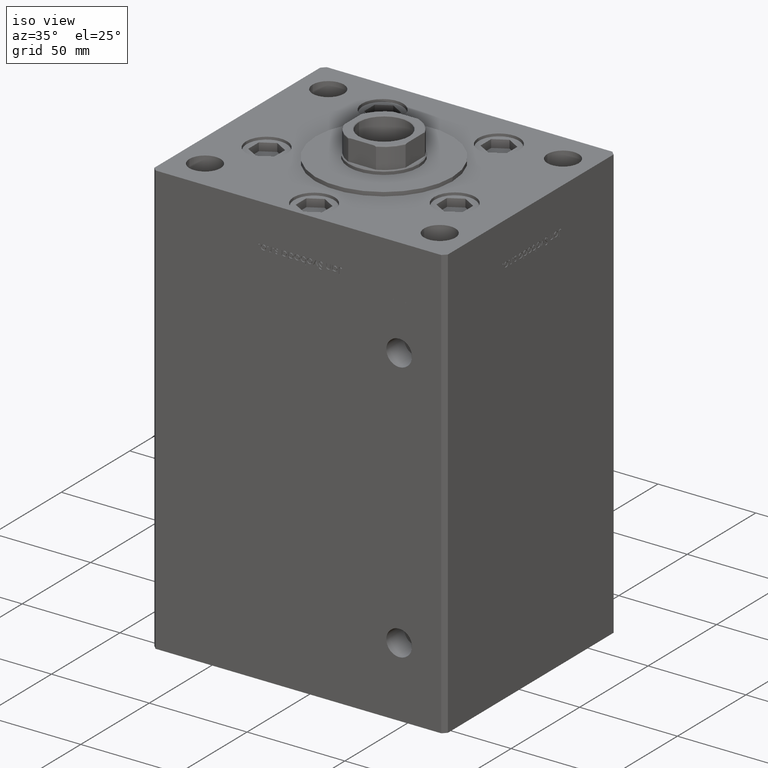
[diagram: clean part render]
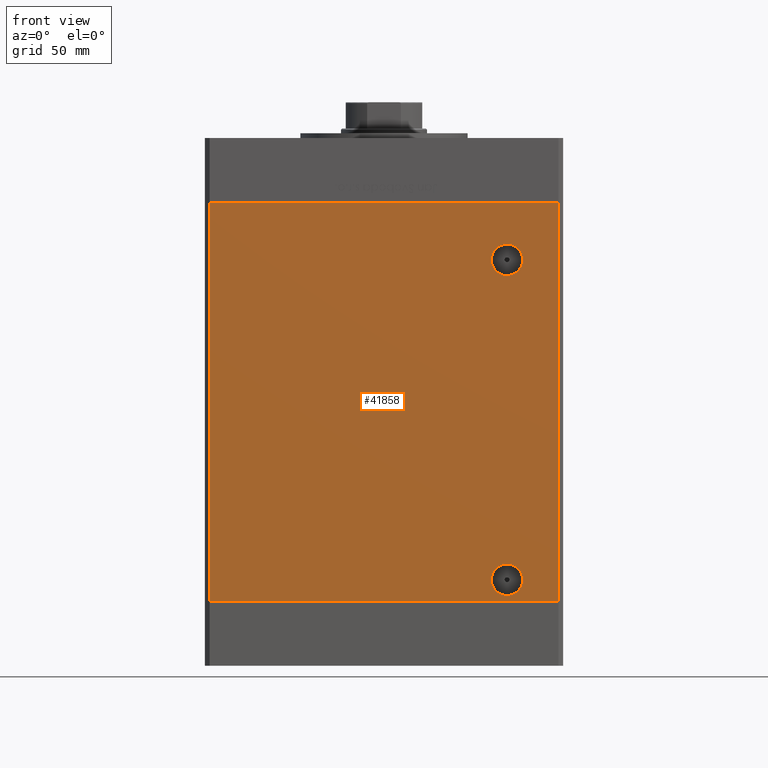
[diagram: tour spotlight — one face highlighted and labeled with its STEP entity id]
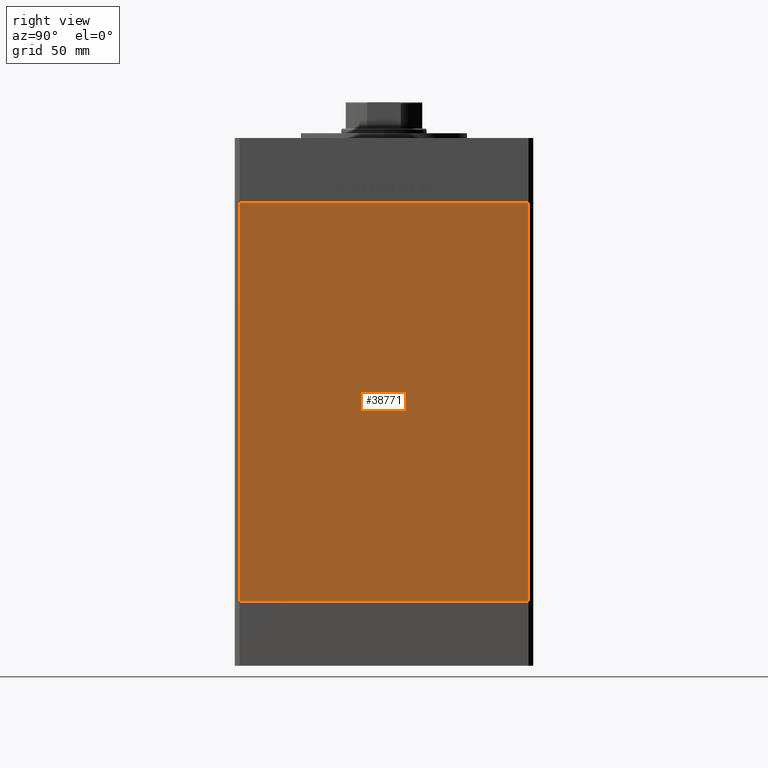
[diagram: tour spotlight — one face highlighted and labeled with its STEP entity id]
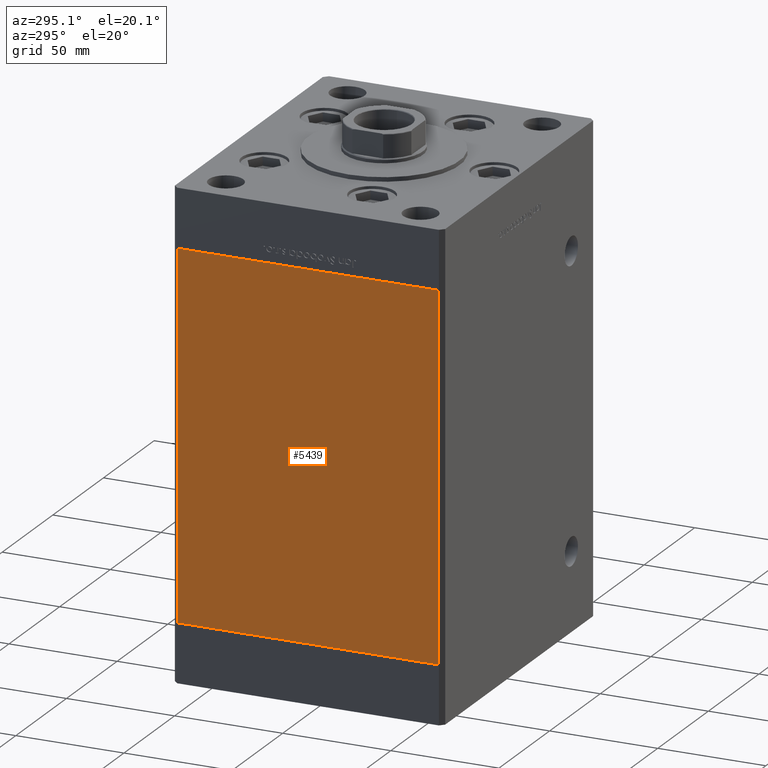
[diagram: tour spotlight — one face highlighted and labeled with its STEP entity id]
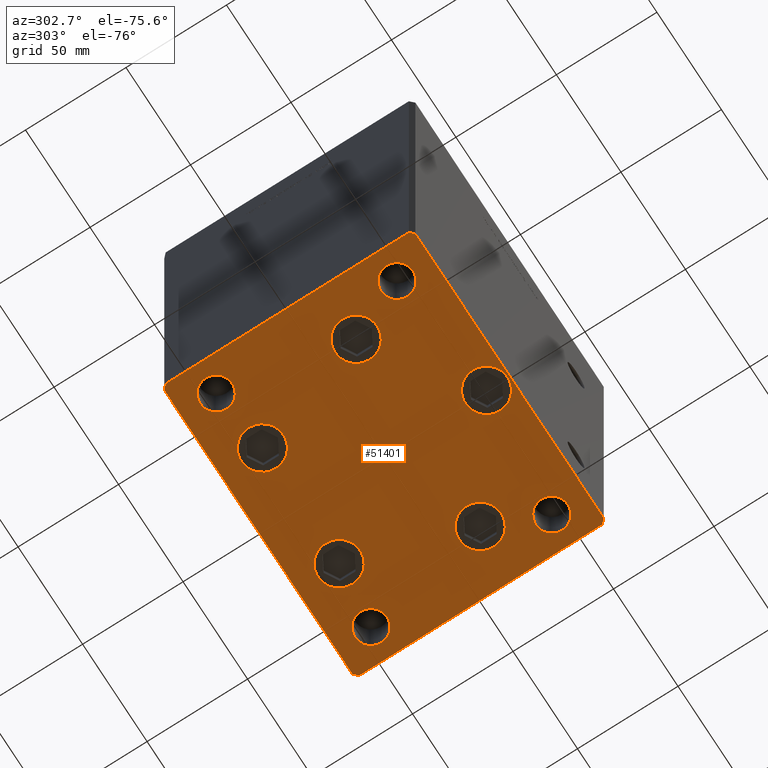
[diagram: tour spotlight — one face highlighted and labeled with its STEP entity id]
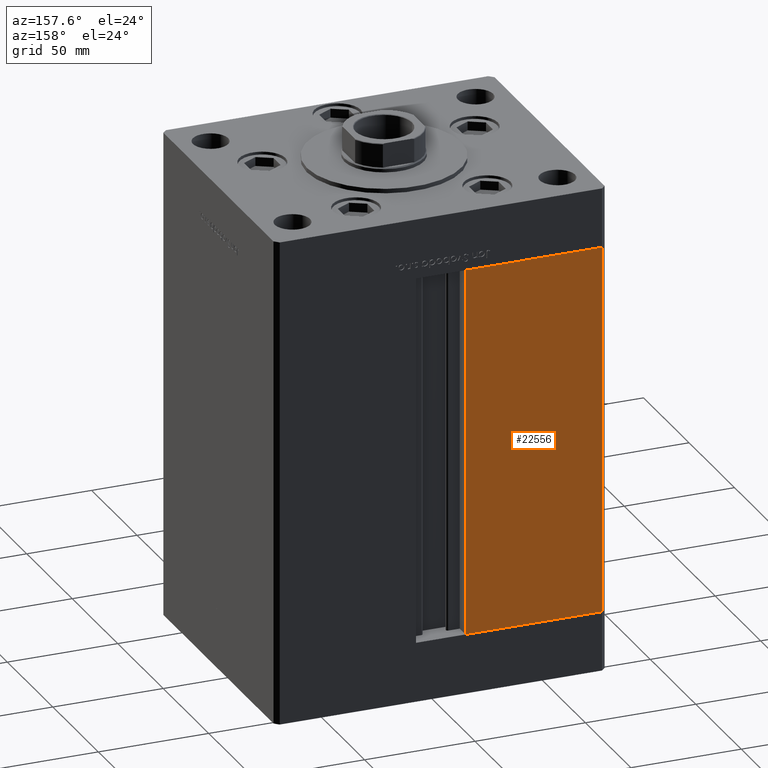
[diagram: tour spotlight — one face highlighted and labeled with its STEP entity id]
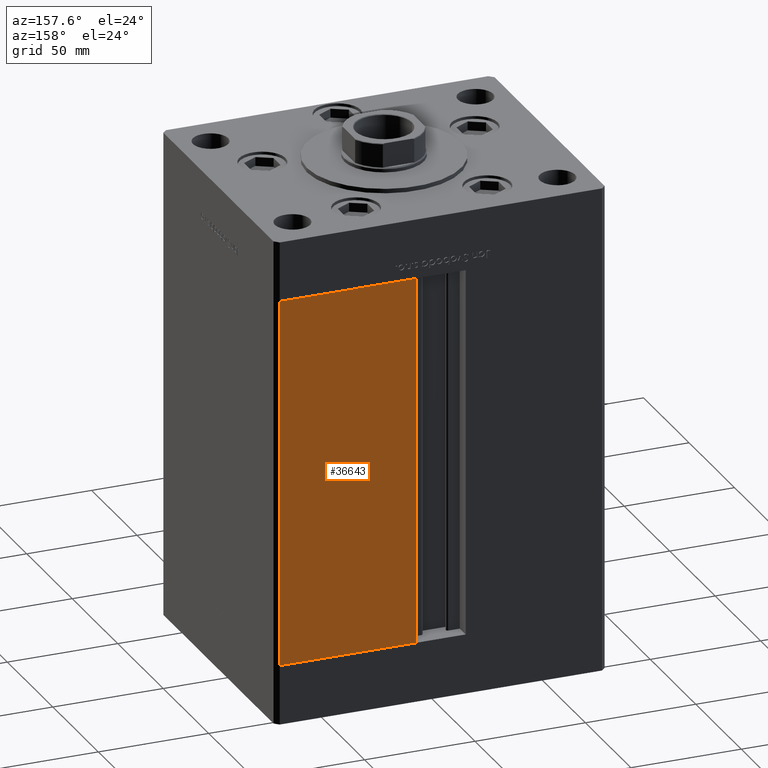
[diagram: tour spotlight — one face highlighted and labeled with its STEP entity id]
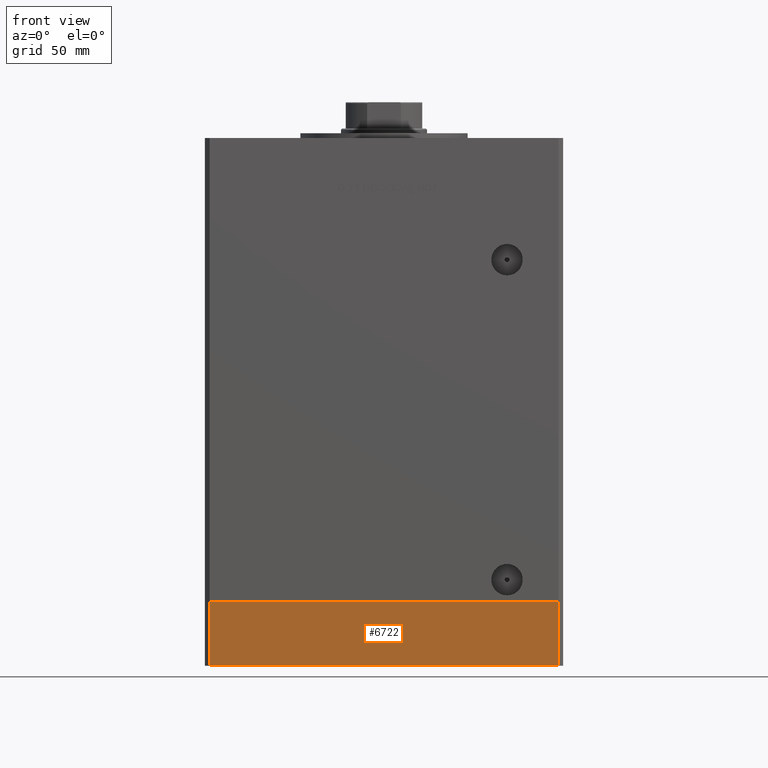
[diagram: tour spotlight — one face highlighted and labeled with its STEP entity id]
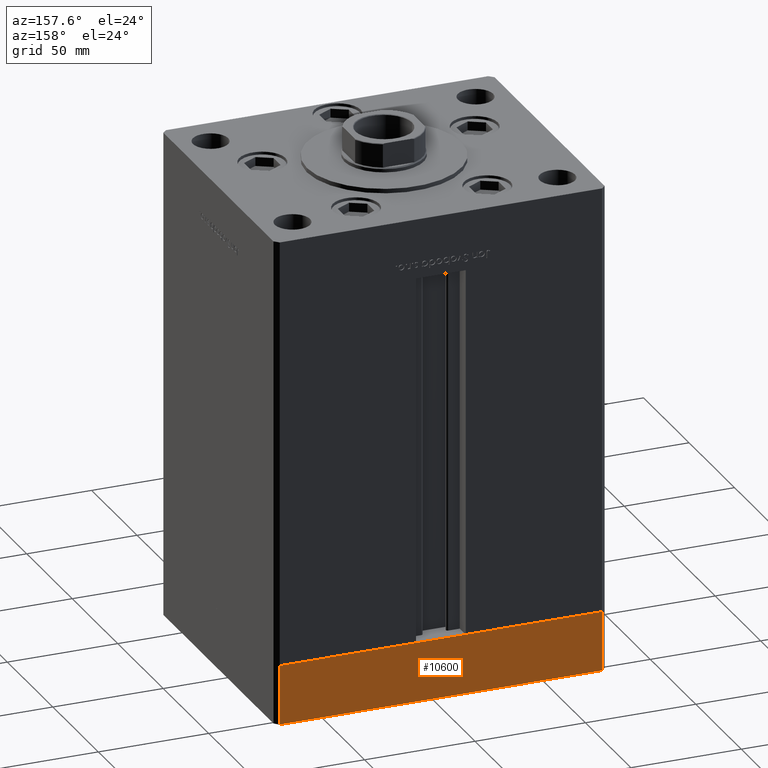
[diagram: tour spotlight — one face highlighted and labeled with its STEP entity id]
A machine part: a face-by-face anatomy tour. The part has 1185 B-rep faces; the first image is the clean iso view, then the 8 largest visible faces are spotlighted one at a time (largest first), each with its STEP entity span.

Face 1 — front view, entity #41858. In plain terms, the highlighted planar face has unit normal (0, 1, 0).
Definition (entity closure, byte-faithful):
#1390 = CARTESIAN_POINT ( 'NONE',  ( 51.49999999999998579, -62.50000000000000000, 15.58000000000000185 ) ) ;
#3079 = DIRECTION ( 'NONE',  ( -0.000000000000000000, -0.000000000000000000, -1.000000000000000000 ) ) ;
#3198 = DIRECTION ( 'NONE',  ( 0.000000000000000000, -1.000000000000000000, 0.000000000000000000 ) ) ;
#3371 = CARTESIAN_POINT ( 'NONE',  ( 51.49999999999997158, -62.50000000000000000, 143.0000000000000284 ) ) ;
#3547 = AXIS2_PLACEMENT_3D ( 'NONE', #23224, #3198, #51421 ) ;
#3856 = LINE ( 'NONE', #10974, #50994 ) ;
#3880 = LINE ( 'NONE', #19941, #30347 ) ;
#4501 = DIRECTION ( 'NONE',  ( 1.000000000000000000, 0.000000000000000000, 0.000000000000000000 ) ) ;
#5240 = CIRCLE ( 'NONE', #3547, 6.579999999999994742 ) ;
#5619 = VECTOR ( 'NONE', #28067, 1000.000000000000000 ) ;
#7736 = EDGE_CURVE ( 'NONE', #44266, #20592, #5240, .T. ) ;
#7951 = DIRECTION ( 'NONE',  ( 0.000000000000000000, -1.000000000000000000, 0.000000000000000000 ) ) ;
#10190 = AXIS2_PLACEMENT_3D ( 'NONE', #10814, #18976, #21901 ) ;
#10416 = CARTESIAN_POINT ( 'NONE',  ( 51.49999999999997158, -62.50000000000000000, 143.0000000000000284 ) ) ;
#10504 = ORIENTED_EDGE ( 'NONE', *, *, #21599, .T. ) ;
#10814 = CARTESIAN_POINT ( 'NONE',  ( -72.99999999999998579, -62.50000000000000000, 167.0000000000000000 ) ) ;
#10974 = CARTESIAN_POINT ( 'NONE',  ( -72.99999999999998579, -62.50000000000000000, 167.0000000000000000 ) ) ;
#11441 = DIRECTION ( 'NONE',  ( 0.000000000000000000, 0.000000000000000000, -1.000000000000000000 ) ) ;
#12527 = AXIS2_PLACEMENT_3D ( 'NONE', #28941, #7951, #20774 ) ;
#12776 = CARTESIAN_POINT ( 'NONE',  ( -72.99999999999998579, -62.50000000000000000, 0.000000000000000000 ) ) ;
#13682 = VERTEX_POINT ( 'NONE', #13985 ) ;
#13985 = CARTESIAN_POINT ( 'NONE',  ( 72.99999999999998579, -62.50000000000000000, 0.000000000000000000 ) ) ;
#14609 = CARTESIAN_POINT ( 'NONE',  ( 51.49999999999998579, -62.50000000000000000, 2.420000000000011475 ) ) ;
#15684 = LINE ( 'NONE', #12776, #5619 ) ;
#18151 = CARTESIAN_POINT ( 'NONE',  ( 51.49999999999997158, -62.50000000000000000, 136.4200000000000159 ) ) ;
#18862 = ORIENTED_EDGE ( 'NONE', *, *, #24217, .T. ) ;
#18976 = DIRECTION ( 'NONE',  ( 0.000000000000000000, 1.000000000000000000, 0.000000000000000000 ) ) ;
#19360 = CIRCLE ( 'NONE', #45426, 6.580000000000002736 ) ;
#19941 = CARTESIAN_POINT ( 'NONE',  ( 72.99999999999998579, -62.50000000000000000, 167.0000000000000000 ) ) ;
#20080 = ORIENTED_EDGE ( 'NONE', *, *, #40975, .F. ) ;
#20592 = VERTEX_POINT ( 'NONE', #14609 ) ;
#20774 = DIRECTION ( 'NONE',  ( 0.000000000000000000, 0.000000000000000000, -1.000000000000000000 ) ) ;
#21082 = LINE ( 'NONE', #33212, #23053 ) ;
#21599 = EDGE_CURVE ( 'NONE', #47385, #29950, #3856, .T. ) ;
#21733 = EDGE_LOOP ( 'NONE', ( #18862, #20080, #36057, #10504 ) ) ;
#21901 = DIRECTION ( 'NONE',  ( 0.000000000000000000, -0.000000000000000000, 1.000000000000000000 ) ) ;
#23053 = VECTOR ( 'NONE', #4501, 1000.000000000000000 ) ;
#23224 = CARTESIAN_POINT ( 'NONE',  ( 51.49999999999998579, -62.50000000000000000, 9.000000000000007105 ) ) ;
#24217 = EDGE_CURVE ( 'NONE', #29950, #13682, #15684, .T. ) ;
#26118 = FACE_BOUND ( 'NONE', #31734, .T. ) ;
#26842 = VERTEX_POINT ( 'NONE', #18151 ) ;
#27098 = DIRECTION ( 'NONE',  ( 0.000000000000000000, 0.000000000000000000, -1.000000000000000000 ) ) ;
#27561 = ORIENTED_EDGE ( 'NONE', *, *, #30867, .F. ) ;
#28067 = DIRECTION ( 'NONE',  ( 1.000000000000000000, 0.000000000000000000, 0.000000000000000000 ) ) ;
#28941 = CARTESIAN_POINT ( 'NONE',  ( 51.49999999999998579, -62.50000000000000000, 9.000000000000007105 ) ) ;
#29950 = VERTEX_POINT ( 'NONE', #30973 ) ;
#30317 = PLANE ( 'NONE',  #10190 ) ;
#30347 = VECTOR ( 'NONE', #52089, 1000.000000000000000 ) ;
#30837 = FACE_BOUND ( 'NONE', #39435, .T. ) ;
#30867 = EDGE_CURVE ( 'NONE', #20592, #44266, #32714, .T. ) ;
#30950 = DIRECTION ( 'NONE',  ( -0.000000000000000000, 1.000000000000000000, -0.000000000000000000 ) ) ;
#30973 = CARTESIAN_POINT ( 'NONE',  ( -72.99999999999998579, -62.50000000000000000, 0.000000000000000000 ) ) ;
#31306 = DIRECTION ( 'NONE',  ( -0.000000000000000000, 1.000000000000000000, -0.000000000000000000 ) ) ;
#31734 = EDGE_LOOP ( 'NONE', ( #27561, #32709 ) ) ;
#32519 = ORIENTED_EDGE ( 'NONE', *, *, #43236, .T. ) ;
#32709 = ORIENTED_EDGE ( 'NONE', *, *, #7736, .F. ) ;
#32714 = CIRCLE ( 'NONE', #12527, 6.579999999999994742 ) ;
#32728 = CARTESIAN_POINT ( 'NONE',  ( -72.99999999999998579, -62.50000000000000000, 167.0000000000000000 ) ) ;
#33212 = CARTESIAN_POINT ( 'NONE',  ( -72.99999999999998579, -62.50000000000000000, 167.0000000000000000 ) ) ;
#33966 = CARTESIAN_POINT ( 'NONE',  ( 72.99999999999998579, -62.50000000000000000, 167.0000000000000000 ) ) ;
#34437 = EDGE_CURVE ( 'NONE', #26842, #47719, #19360, .T. ) ;
#36057 = ORIENTED_EDGE ( 'NONE', *, *, #50777, .F. ) ;
#37132 = CIRCLE ( 'NONE', #48056, 6.580000000000002736 ) ;
#39435 = EDGE_LOOP ( 'NONE', ( #48489, #32519 ) ) ;
#40975 = EDGE_CURVE ( 'NONE', #43054, #13682, #3880, .T. ) ;
#41858 = ADVANCED_FACE ( 'NONE', ( #26118, #42160, #30837 ), #30317, .F. ) ;
#42160 = FACE_OUTER_BOUND ( 'NONE', #21733, .T. ) ;
#43054 = VERTEX_POINT ( 'NONE', #33966 ) ;
#43236 = EDGE_CURVE ( 'NONE', #47719, #26842, #37132, .T. ) ;
#44266 = VERTEX_POINT ( 'NONE', #1390 ) ;
#44775 = CARTESIAN_POINT ( 'NONE',  ( 51.49999999999997158, -62.50000000000000000, 149.5800000000000125 ) ) ;
#45426 = AXIS2_PLACEMENT_3D ( 'NONE', #10416, #30950, #11441 ) ;
#47385 = VERTEX_POINT ( 'NONE', #32728 ) ;
#47719 = VERTEX_POINT ( 'NONE', #44775 ) ;
#48056 = AXIS2_PLACEMENT_3D ( 'NONE', #3371, #31306, #27098 ) ;
#48489 = ORIENTED_EDGE ( 'NONE', *, *, #34437, .T. ) ;
#50777 = EDGE_CURVE ( 'NONE', #47385, #43054, #21082, .T. ) ;
#50994 = VECTOR ( 'NONE', #3079, 1000.000000000000000 ) ;
#51421 = DIRECTION ( 'NONE',  ( 0.000000000000000000, 0.000000000000000000, -1.000000000000000000 ) ) ;
#52089 = DIRECTION ( 'NONE',  ( -0.000000000000000000, -0.000000000000000000, -1.000000000000000000 ) ) ;

Face 2 — right view, entity #38771. In plain terms, the highlighted planar face has unit normal (1, -0, 0).
Definition (entity closure, byte-faithful):
#1369 = VECTOR ( 'NONE', #24007, 1000.000000000000000 ) ;
#1992 = LINE ( 'NONE', #37013, #34610 ) ;
#2867 = EDGE_LOOP ( 'NONE', ( #13543, #30529, #13601, #9141 ) ) ;
#3125 = VERTEX_POINT ( 'NONE', #51310 ) ;
#3838 = EDGE_CURVE ( 'NONE', #5170, #9280, #1992, .T. ) ;
#5170 = VERTEX_POINT ( 'NONE', #36636 ) ;
#5316 = FACE_OUTER_BOUND ( 'NONE', #2867, .T. ) ;
#6605 = DIRECTION ( 'NONE',  ( -2.293849224432141861E-16, -1.000000000000000000, 0.000000000000000000 ) ) ;
#7523 = VECTOR ( 'NONE', #6605, 1000.000000000000000 ) ;
#7938 = LINE ( 'NONE', #30678, #1369 ) ;
#9141 = ORIENTED_EDGE ( 'NONE', *, *, #3838, .T. ) ;
#9280 = VERTEX_POINT ( 'NONE', #9558 ) ;
#9529 = DIRECTION ( 'NONE',  ( 1.000000000000000000, -2.293849224432142354E-16, 0.000000000000000000 ) ) ;
#9558 = CARTESIAN_POINT ( 'NONE',  ( 74.99999999999998579, -60.50000000000000000, 0.000000000000000000 ) ) ;
#13543 = ORIENTED_EDGE ( 'NONE', *, *, #31825, .F. ) ;
#13601 = ORIENTED_EDGE ( 'NONE', *, *, #40873, .T. ) ;
#15469 = DIRECTION ( 'NONE',  ( -2.293849224432141861E-16, -1.000000000000000000, 0.000000000000000000 ) ) ;
#21897 = EDGE_CURVE ( 'NONE', #3125, #35310, #7938, .T. ) ;
#24007 = DIRECTION ( 'NONE',  ( -0.000000000000000000, -0.000000000000000000, -1.000000000000000000 ) ) ;
#25603 = DIRECTION ( 'NONE',  ( 2.293849224432142354E-16, 1.000000000000000000, 0.000000000000000000 ) ) ;
#27589 = CARTESIAN_POINT ( 'NONE',  ( 75.00000000000001421, 60.50000000000000000, 167.0000000000000000 ) ) ;
#28608 = AXIS2_PLACEMENT_3D ( 'NONE', #49589, #9529, #25603 ) ;
#30166 = DIRECTION ( 'NONE',  ( -0.000000000000000000, -0.000000000000000000, -1.000000000000000000 ) ) ;
#30529 = ORIENTED_EDGE ( 'NONE', *, *, #21897, .F. ) ;
#30678 = CARTESIAN_POINT ( 'NONE',  ( 75.00000000000001421, 60.50000000000000000, 167.0000000000000000 ) ) ;
#30836 = CARTESIAN_POINT ( 'NONE',  ( 75.00000000000001421, 60.50000000000000000, 0.000000000000000000 ) ) ;
#31825 = EDGE_CURVE ( 'NONE', #35310, #9280, #34273, .T. ) ;
#34273 = LINE ( 'NONE', #30836, #7523 ) ;
#34610 = VECTOR ( 'NONE', #30166, 1000.000000000000000 ) ;
#35310 = VERTEX_POINT ( 'NONE', #43373 ) ;
#36636 = CARTESIAN_POINT ( 'NONE',  ( 74.99999999999998579, -60.50000000000000000, 167.0000000000000000 ) ) ;
#37013 = CARTESIAN_POINT ( 'NONE',  ( 74.99999999999998579, -60.50000000000000000, 167.0000000000000000 ) ) ;
#37435 = PLANE ( 'NONE',  #28608 ) ;
#38771 = ADVANCED_FACE ( 'NONE', ( #5316 ), #37435, .T. ) ;
#40873 = EDGE_CURVE ( 'NONE', #3125, #5170, #46582, .T. ) ;
#43373 = CARTESIAN_POINT ( 'NONE',  ( 75.00000000000001421, 60.50000000000000000, 0.000000000000000000 ) ) ;
#46582 = LINE ( 'NONE', #27589, #50528 ) ;
#49589 = CARTESIAN_POINT ( 'NONE',  ( 75.00000000000001421, 60.50000000000000000, 167.0000000000000000 ) ) ;
#50528 = VECTOR ( 'NONE', #15469, 1000.000000000000000 ) ;
#51310 = CARTESIAN_POINT ( 'NONE',  ( 75.00000000000001421, 60.50000000000000000, 167.0000000000000000 ) ) ;

Face 3 — auxiliary view, entity #5439. In plain terms, the highlighted planar face has unit normal (1, 0, 0).
Definition (entity closure, byte-faithful):
#1039 = CARTESIAN_POINT ( 'NONE',  ( -74.99999999999998579, -60.50000000000000000, 0.000000000000000000 ) ) ;
#2711 = VERTEX_POINT ( 'NONE', #8506 ) ;
#3989 = VECTOR ( 'NONE', #28890, 1000.000000000000000 ) ;
#4068 = ORIENTED_EDGE ( 'NONE', *, *, #39587, .F. ) ;
#5439 = ADVANCED_FACE ( 'NONE', ( #33357 ), #10427, .F. ) ;
#5693 = DIRECTION ( 'NONE',  ( -2.293849224432142354E-16, 1.000000000000000000, 0.000000000000000000 ) ) ;
#7585 = VECTOR ( 'NONE', #41401, 1000.000000000000000 ) ;
#8254 = EDGE_CURVE ( 'NONE', #19365, #32156, #18880, .T. ) ;
#8506 = CARTESIAN_POINT ( 'NONE',  ( -75.00000000000001421, 60.50000000000000000, 0.000000000000000000 ) ) ;
#9288 = CARTESIAN_POINT ( 'NONE',  ( -75.00000000000001421, 60.50000000000000000, 167.0000000000000000 ) ) ;
#10427 = PLANE ( 'NONE',  #32951 ) ;
#12831 = LINE ( 'NONE', #29157, #3989 ) ;
#14373 = CARTESIAN_POINT ( 'NONE',  ( -75.00000000000001421, 60.50000000000000000, 167.0000000000000000 ) ) ;
#17082 = EDGE_LOOP ( 'NONE', ( #45278, #31805, #4068, #42647 ) ) ;
#17873 = CARTESIAN_POINT ( 'NONE',  ( -75.00000000000001421, 60.50000000000000000, 0.000000000000000000 ) ) ;
#18366 = CARTESIAN_POINT ( 'NONE',  ( -74.99999999999998579, -60.50000000000000000, 167.0000000000000000 ) ) ;
#18880 = LINE ( 'NONE', #18366, #46507 ) ;
#19365 = VERTEX_POINT ( 'NONE', #47570 ) ;
#22543 = DIRECTION ( 'NONE',  ( 1.000000000000000000, 2.293849224432142354E-16, -0.000000000000000000 ) ) ;
#25340 = LINE ( 'NONE', #30595, #7585 ) ;
#25396 = EDGE_CURVE ( 'NONE', #2711, #32156, #37862, .T. ) ;
#25856 = VECTOR ( 'NONE', #46056, 1000.000000000000000 ) ;
#27134 = EDGE_CURVE ( 'NONE', #35684, #2711, #12831, .T. ) ;
#28890 = DIRECTION ( 'NONE',  ( -0.000000000000000000, -0.000000000000000000, -1.000000000000000000 ) ) ;
#29157 = CARTESIAN_POINT ( 'NONE',  ( -75.00000000000001421, 60.50000000000000000, 167.0000000000000000 ) ) ;
#30595 = CARTESIAN_POINT ( 'NONE',  ( -75.00000000000001421, 60.50000000000000000, 167.0000000000000000 ) ) ;
#31805 = ORIENTED_EDGE ( 'NONE', *, *, #8254, .F. ) ;
#32156 = VERTEX_POINT ( 'NONE', #1039 ) ;
#32951 = AXIS2_PLACEMENT_3D ( 'NONE', #14373, #22543, #5693 ) ;
#33357 = FACE_OUTER_BOUND ( 'NONE', #17082, .T. ) ;
#34425 = DIRECTION ( 'NONE',  ( -0.000000000000000000, -0.000000000000000000, -1.000000000000000000 ) ) ;
#35684 = VERTEX_POINT ( 'NONE', #9288 ) ;
#37862 = LINE ( 'NONE', #17873, #25856 ) ;
#39587 = EDGE_CURVE ( 'NONE', #35684, #19365, #25340, .T. ) ;
#41401 = DIRECTION ( 'NONE',  ( 2.293849224432141861E-16, -1.000000000000000000, 0.000000000000000000 ) ) ;
#42647 = ORIENTED_EDGE ( 'NONE', *, *, #27134, .T. ) ;
#45278 = ORIENTED_EDGE ( 'NONE', *, *, #25396, .T. ) ;
#46056 = DIRECTION ( 'NONE',  ( 2.293849224432141861E-16, -1.000000000000000000, 0.000000000000000000 ) ) ;
#46507 = VECTOR ( 'NONE', #34425, 1000.000000000000000 ) ;
#47570 = CARTESIAN_POINT ( 'NONE',  ( -74.99999999999998579, -60.50000000000000000, 167.0000000000000000 ) ) ;

Face 4 — auxiliary view, entity #51401. In plain terms, the highlighted planar face has unit normal (0, 0, -1).
Definition (entity closure, byte-faithful):
#97 = CIRCLE ( 'NONE', #12741, 8.000000000000007105 ) ;
#140 = DIRECTION ( 'NONE',  ( 0.000000000000000000, -0.000000000000000000, -1.000000000000000000 ) ) ;
#418 = CARTESIAN_POINT ( 'NONE',  ( 29.73102073172059789, 41.43749999999999289, 0.000000000000000000 ) ) ;
#555 = DIRECTION ( 'NONE',  ( 0.000000000000000000, -0.000000000000000000, -1.000000000000000000 ) ) ;
#1106 = VERTEX_POINT ( 'NONE', #17211 ) ;
#1130 = EDGE_CURVE ( 'NONE', #27614, #18181, #49840, .T. ) ;
#1224 = EDGE_LOOP ( 'NONE', ( #5529, #47314 ) ) ;
#1282 = DIRECTION ( 'NONE',  ( 0.000000000000000000, -0.000000000000000000, -1.000000000000000000 ) ) ;
#1308 = CARTESIAN_POINT ( 'NONE',  ( 72.99999999999992895, 62.50000000000001421, 0.000000000000000000 ) ) ;
#1704 = CIRCLE ( 'NONE', #42069, 10.50000000000000000 ) ;
#1858 = VERTEX_POINT ( 'NONE', #14542 ) ;
#2034 = CARTESIAN_POINT ( 'NONE',  ( 68.00000000000000000, 44.99999999999999289, 0.000000000000000000 ) ) ;
#2252 = DIRECTION ( 'NONE',  ( 1.000000000000000000, 0.000000000000000000, 0.000000000000000000 ) ) ;
#2800 = EDGE_CURVE ( 'NONE', #1858, #35930, #14029, .T. ) ;
#3313 = AXIS2_PLACEMENT_3D ( 'NONE', #38667, #21839, #25803 ) ;
#3321 = DIRECTION ( 'NONE',  ( 1.000000000000000000, 0.000000000000000000, 0.000000000000000000 ) ) ;
#3638 = ORIENTED_EDGE ( 'NONE', *, *, #41437, .F. ) ;
#4365 = CARTESIAN_POINT ( 'NONE',  ( 73.00000000000001421, -62.50000000000001421, 0.000000000000000000 ) ) ;
#4375 = CARTESIAN_POINT ( 'NONE',  ( -48.08326112068522207, -17.00000000000000711, 0.000000000000000000 ) ) ;
#4376 = CARTESIAN_POINT ( 'NONE',  ( 6.245698675651500444E-15, -51.00000000000000000, 0.000000000000000000 ) ) ;
#4409 = CIRCLE ( 'NONE', #40575, 10.50000000000000178 ) ;
#4590 = CARTESIAN_POINT ( 'NONE',  ( -60.00000000000000000, 45.00000000000000000, 0.000000000000000000 ) ) ;
#4599 = VECTOR ( 'NONE', #47736, 1000.000000000000000 ) ;
#4830 = FACE_BOUND ( 'NONE', #45704, .T. ) ;
#4858 = AXIS2_PLACEMENT_3D ( 'NONE', #33415, #1282, #48705 ) ;
#5129 = EDGE_CURVE ( 'NONE', #17651, #1106, #5202, .T. ) ;
#5202 = CIRCLE ( 'NONE', #28732, 10.50000000000000178 ) ;
#5297 = DIRECTION ( 'NONE',  ( 1.000000000000000000, 0.000000000000000000, 0.000000000000000000 ) ) ;
#5313 = CARTESIAN_POINT ( 'NONE',  ( -40.23102073172060500, 41.43749999999998579, 0.000000000000000000 ) ) ;
#5529 = ORIENTED_EDGE ( 'NONE', *, *, #6266, .T. ) ;
#5704 = DIRECTION ( 'NONE',  ( 1.000000000000000000, 0.000000000000000000, 0.000000000000000000 ) ) ;
#6069 = EDGE_LOOP ( 'NONE', ( #15622, #35977 ) ) ;
#6266 = EDGE_CURVE ( 'NONE', #45393, #38489, #27915, .T. ) ;
#6377 = VERTEX_POINT ( 'NONE', #31814 ) ;
#6520 = AXIS2_PLACEMENT_3D ( 'NONE', #13202, #555, #5297 ) ;
#6685 = EDGE_LOOP ( 'NONE', ( #15570, #26052 ) ) ;
#7050 = CARTESIAN_POINT ( 'NONE',  ( -60.00000000000000000, 45.00000000000000000, 0.000000000000000000 ) ) ;
#7505 = CARTESIAN_POINT ( 'NONE',  ( -75.00000000000001421, -60.50000000000001421, 0.000000000000000000 ) ) ;
#7611 = VERTEX_POINT ( 'NONE', #24835 ) ;
#7982 = VERTEX_POINT ( 'NONE', #50591 ) ;
#8564 = VERTEX_POINT ( 'NONE', #12147 ) ;
#8632 = EDGE_CURVE ( 'NONE', #9757, #36293, #4409, .T. ) ;
#8715 = DIRECTION ( 'NONE',  ( 1.000000000000000000, 0.000000000000000000, 0.000000000000000000 ) ) ;
#9564 = FACE_BOUND ( 'NONE', #25282, .T. ) ;
#9588 = ORIENTED_EDGE ( 'NONE', *, *, #38302, .T. ) ;
#9754 = DIRECTION ( 'NONE',  ( -1.000000000000000000, -1.901066822988282689E-16, 0.000000000000000000 ) ) ;
#9757 = VERTEX_POINT ( 'NONE', #33866 ) ;
#9822 = FACE_BOUND ( 'NONE', #24406, .T. ) ;
#10561 = EDGE_CURVE ( 'NONE', #38489, #45393, #26356, .T. ) ;
#10667 = CARTESIAN_POINT ( 'NONE',  ( 10.50000000000000711, -51.00000000000000000, 0.000000000000000000 ) ) ;
#10932 = ORIENTED_EDGE ( 'NONE', *, *, #51237, .T. ) ;
#11254 = AXIS2_PLACEMENT_3D ( 'NONE', #25847, #45860, #37417 ) ;
#11796 = ORIENTED_EDGE ( 'NONE', *, *, #15630, .F. ) ;
#12147 = CARTESIAN_POINT ( 'NONE',  ( 68.00000000000000000, -44.99999999999999289, 0.000000000000000000 ) ) ;
#12229 = CIRCLE ( 'NONE', #37447, 8.000000000000007105 ) ;
#12404 = CARTESIAN_POINT ( 'NONE',  ( -29.73102073172060500, 41.43749999999998579, 0.000000000000000000 ) ) ;
#12732 = FACE_BOUND ( 'NONE', #1224, .T. ) ;
#12741 = AXIS2_PLACEMENT_3D ( 'NONE', #18670, #46605, #50060 ) ;
#12747 = EDGE_CURVE ( 'NONE', #48088, #23034, #25591, .T. ) ;
#13202 = CARTESIAN_POINT ( 'NONE',  ( -59.99999999999999289, -45.00000000000000000, 0.000000000000000000 ) ) ;
#13511 = DIRECTION ( 'NONE',  ( 0.000000000000000000, -0.000000000000000000, -1.000000000000000000 ) ) ;
#14029 = LINE ( 'NONE', #42197, #35501 ) ;
#14442 = DIRECTION ( 'NONE',  ( 1.000000000000000000, 0.000000000000000000, 0.000000000000000000 ) ) ;
#14542 = CARTESIAN_POINT ( 'NONE',  ( -73.00000000000001421, 62.49999999999998579, 0.000000000000000000 ) ) ;
#14703 = DIRECTION ( 'NONE',  ( -0.000000000000000000, 0.000000000000000000, 1.000000000000000000 ) ) ;
#14879 = LINE ( 'NONE', #31203, #36493 ) ;
#14883 = EDGE_CURVE ( 'NONE', #21783, #49251, #15590, .T. ) ;
#14970 = ORIENTED_EDGE ( 'NONE', *, *, #22069, .T. ) ;
#15570 = ORIENTED_EDGE ( 'NONE', *, *, #36566, .T. ) ;
#15590 = LINE ( 'NONE', #38780, #4599 ) ;
#15622 = ORIENTED_EDGE ( 'NONE', *, *, #1130, .T. ) ;
#15630 = EDGE_CURVE ( 'NONE', #36602, #39734, #32384, .T. ) ;
#15945 = CARTESIAN_POINT ( 'NONE',  ( 48.08326112068522207, -16.99999999999999645, 0.000000000000000000 ) ) ;
#15967 = DIRECTION ( 'NONE',  ( 0.000000000000000000, -0.000000000000000000, -1.000000000000000000 ) ) ;
#16101 = CARTESIAN_POINT ( 'NONE',  ( -48.08326112068522207, -17.00000000000000711, 0.000000000000000000 ) ) ;
#16372 = DIRECTION ( 'NONE',  ( 1.000000000000000000, 0.000000000000000000, 0.000000000000000000 ) ) ;
#16531 = ORIENTED_EDGE ( 'NONE', *, *, #27068, .T. ) ;
#16715 = EDGE_CURVE ( 'NONE', #8564, #28771, #12229, .T. ) ;
#16943 = CARTESIAN_POINT ( 'NONE',  ( 0.000000000000000000, 0.000000000000000000, 0.000000000000000000 ) ) ;
#17208 = DIRECTION ( 'NONE',  ( -0.7071067811865451302, -0.7071067811865500152, 0.000000000000000000 ) ) ;
#17211 = CARTESIAN_POINT ( 'NONE',  ( -37.58326112068522207, -17.00000000000000711, 0.000000000000000000 ) ) ;
#17651 = VERTEX_POINT ( 'NONE', #28295 ) ;
#17759 = CIRCLE ( 'NONE', #28680, 8.000000000000000000 ) ;
#17867 = AXIS2_PLACEMENT_3D ( 'NONE', #49968, #29916, #45990 ) ;
#18181 = VERTEX_POINT ( 'NONE', #44225 ) ;
#18183 = AXIS2_PLACEMENT_3D ( 'NONE', #4375, #49176, #20182 ) ;
#18184 = CARTESIAN_POINT ( 'NONE',  ( 72.99999999999992895, 62.50000000000001421, 0.000000000000000000 ) ) ;
#18664 = CARTESIAN_POINT ( 'NONE',  ( -52.00000000000000000, 45.00000000000000000, 0.000000000000000000 ) ) ;
#18670 = CARTESIAN_POINT ( 'NONE',  ( 60.00000000000000000, -44.99999999999999289, 0.000000000000000000 ) ) ;
#19163 = CARTESIAN_POINT ( 'NONE',  ( -75.00000000000001421, 60.49999999999997158, 0.000000000000000000 ) ) ;
#19927 = DIRECTION ( 'NONE',  ( 0.000000000000000000, -0.000000000000000000, -1.000000000000000000 ) ) ;
#20113 = VECTOR ( 'NONE', #50964, 1000.000000000000114 ) ;
#20114 = EDGE_CURVE ( 'NONE', #22104, #21783, #34545, .T. ) ;
#20182 = DIRECTION ( 'NONE',  ( 1.000000000000000000, 0.000000000000000000, 0.000000000000000000 ) ) ;
#20653 = DIRECTION ( 'NONE',  ( -0.000000000000000000, 0.000000000000000000, 1.000000000000000000 ) ) ;
#20679 = CARTESIAN_POINT ( 'NONE',  ( 75.00000000000001421, -60.50000000000000711, 0.000000000000000000 ) ) ;
#20887 = DIRECTION ( 'NONE',  ( 1.000000000000000000, 0.000000000000000000, 0.000000000000000000 ) ) ;
#20888 = FACE_BOUND ( 'NONE', #6685, .T. ) ;
#21448 = CARTESIAN_POINT ( 'NONE',  ( 40.23102073172059789, 41.43749999999999289, 0.000000000000000000 ) ) ;
#21457 = ORIENTED_EDGE ( 'NONE', *, *, #2800, .T. ) ;
#21684 = FACE_BOUND ( 'NONE', #6069, .T. ) ;
#21783 = VERTEX_POINT ( 'NONE', #4365 ) ;
#21839 = DIRECTION ( 'NONE',  ( 0.000000000000000000, -0.000000000000000000, -1.000000000000000000 ) ) ;
#21853 = VECTOR ( 'NONE', #28055, 1000.000000000000114 ) ;
#22069 = EDGE_CURVE ( 'NONE', #23780, #1858, #50335, .T. ) ;
#22104 = VERTEX_POINT ( 'NONE', #50600 ) ;
#22279 = DIRECTION ( 'NONE',  ( 0.000000000000000000, -0.000000000000000000, -1.000000000000000000 ) ) ;
#22490 = EDGE_CURVE ( 'NONE', #1106, #17651, #40040, .T. ) ;
#23034 = VERTEX_POINT ( 'NONE', #35040 ) ;
#23437 = CARTESIAN_POINT ( 'NONE',  ( -51.99999999999999289, -45.00000000000000000, 0.000000000000000000 ) ) ;
#23572 = DIRECTION ( 'NONE',  ( 1.000000000000000000, 0.000000000000000000, 0.000000000000000000 ) ) ;
#23780 = VERTEX_POINT ( 'NONE', #1308 ) ;
#24406 = EDGE_LOOP ( 'NONE', ( #46530, #34364 ) ) ;
#24521 = CARTESIAN_POINT ( 'NONE',  ( 29.73102073172059789, 41.43749999999999289, 0.000000000000000000 ) ) ;
#24572 = VERTEX_POINT ( 'NONE', #42177 ) ;
#24835 = CARTESIAN_POINT ( 'NONE',  ( -75.00000000000001421, -60.50000000000001421, 0.000000000000000000 ) ) ;
#24943 = DIRECTION ( 'NONE',  ( 0.000000000000000000, -1.000000000000000000, 0.000000000000000000 ) ) ;
#25214 = ORIENTED_EDGE ( 'NONE', *, *, #45985, .T. ) ;
#25282 = EDGE_LOOP ( 'NONE', ( #26805, #26266 ) ) ;
#25591 = CIRCLE ( 'NONE', #11254, 8.000000000000007105 ) ;
#25803 = DIRECTION ( 'NONE',  ( 1.000000000000000000, 0.000000000000000000, 0.000000000000000000 ) ) ;
#25847 = CARTESIAN_POINT ( 'NONE',  ( 60.00000000000000000, 44.99999999999999289, 0.000000000000000000 ) ) ;
#25936 = ORIENTED_EDGE ( 'NONE', *, *, #37818, .T. ) ;
#25992 = CARTESIAN_POINT ( 'NONE',  ( 60.00000000000000000, -44.99999999999999289, 0.000000000000000000 ) ) ;
#26052 = ORIENTED_EDGE ( 'NONE', *, *, #8632, .T. ) ;
#26266 = ORIENTED_EDGE ( 'NONE', *, *, #22490, .T. ) ;
#26356 = CIRCLE ( 'NONE', #36399, 10.50000000000000178 ) ;
#26574 = EDGE_LOOP ( 'NONE', ( #42368, #25936 ) ) ;
#26805 = ORIENTED_EDGE ( 'NONE', *, *, #5129, .T. ) ;
#27068 = EDGE_CURVE ( 'NONE', #35930, #7611, #44949, .T. ) ;
#27368 = EDGE_CURVE ( 'NONE', #18181, #27614, #32608, .T. ) ;
#27614 = VERTEX_POINT ( 'NONE', #23437 ) ;
#27721 = EDGE_CURVE ( 'NONE', #24572, #6377, #30955, .T. ) ;
#27915 = CIRCLE ( 'NONE', #48949, 10.50000000000000178 ) ;
#28055 = DIRECTION ( 'NONE',  ( 0.7071067811865451302, -0.7071067811865500152, 0.000000000000000000 ) ) ;
#28295 = CARTESIAN_POINT ( 'NONE',  ( -58.58326112068522207, -17.00000000000000711, 0.000000000000000000 ) ) ;
#28465 = DIRECTION ( 'NONE',  ( 0.000000000000000000, -0.000000000000000000, -1.000000000000000000 ) ) ;
#28680 = AXIS2_PLACEMENT_3D ( 'NONE', #4590, #20653, #23572 ) ;
#28732 = AXIS2_PLACEMENT_3D ( 'NONE', #16101, #32184, #16372 ) ;
#28771 = VERTEX_POINT ( 'NONE', #30511 ) ;
#29321 = FACE_BOUND ( 'NONE', #26574, .T. ) ;
#29478 = EDGE_LOOP ( 'NONE', ( #35624, #25214 ) ) ;
#29543 = VERTEX_POINT ( 'NONE', #37170 ) ;
#29916 = DIRECTION ( 'NONE',  ( -0.000000000000000000, 0.000000000000000000, 1.000000000000000000 ) ) ;
#29947 = VECTOR ( 'NONE', #9754, 1000.000000000000000 ) ;
#30439 = AXIS2_PLACEMENT_3D ( 'NONE', #40902, #13511, #20887 ) ;
#30511 = CARTESIAN_POINT ( 'NONE',  ( 51.99999999999999289, -44.99999999999999289, 0.000000000000000000 ) ) ;
#30598 = DIRECTION ( 'NONE',  ( 1.000000000000000000, 9.505334114941407284E-17, 0.000000000000000000 ) ) ;
#30654 = CARTESIAN_POINT ( 'NONE',  ( 74.99999999999992895, 60.50000000000002842, 0.000000000000000000 ) ) ;
#30955 = CIRCLE ( 'NONE', #4858, 10.50000000000000178 ) ;
#31203 = CARTESIAN_POINT ( 'NONE',  ( 75.00000000000001421, -60.50000000000000711, 0.000000000000000000 ) ) ;
#31814 = CARTESIAN_POINT ( 'NONE',  ( 58.58326112068522207, -16.99999999999999645, 0.000000000000000000 ) ) ;
#31997 = LINE ( 'NONE', #7505, #21853 ) ;
#32149 = CIRCLE ( 'NONE', #17867, 8.000000000000007105 ) ;
#32184 = DIRECTION ( 'NONE',  ( 0.000000000000000000, -0.000000000000000000, -1.000000000000000000 ) ) ;
#32316 = EDGE_LOOP ( 'NONE', ( #43403, #35248 ) ) ;
#32384 = CIRCLE ( 'NONE', #36581, 8.000000000000000000 ) ;
#32529 = ORIENTED_EDGE ( 'NONE', *, *, #20114, .T. ) ;
#32534 = EDGE_CURVE ( 'NONE', #29543, #23780, #35364, .T. ) ;
#32608 = CIRCLE ( 'NONE', #6520, 8.000000000000000000 ) ;
#33371 = CARTESIAN_POINT ( 'NONE',  ( -75.00000000000001421, 60.49999999999997158, 0.000000000000000000 ) ) ;
#33415 = CARTESIAN_POINT ( 'NONE',  ( 48.08326112068522207, -16.99999999999999645, 0.000000000000000000 ) ) ;
#33623 = VERTEX_POINT ( 'NONE', #10667 ) ;
#33866 = CARTESIAN_POINT ( 'NONE',  ( -19.23102073172060145, 41.43749999999998579, 0.000000000000000000 ) ) ;
#34364 = ORIENTED_EDGE ( 'NONE', *, *, #43062, .T. ) ;
#34375 = EDGE_CURVE ( 'NONE', #7982, #33623, #1704, .T. ) ;
#34545 = LINE ( 'NONE', #41920, #41666 ) ;
#35040 = CARTESIAN_POINT ( 'NONE',  ( 51.99999999999999289, 44.99999999999999289, 0.000000000000000000 ) ) ;
#35060 = CARTESIAN_POINT ( 'NONE',  ( -67.99999999999998579, 45.00000000000000000, 0.000000000000000000 ) ) ;
#35248 = ORIENTED_EDGE ( 'NONE', *, *, #46175, .F. ) ;
#35364 = LINE ( 'NONE', #30654, #20113 ) ;
#35501 = VECTOR ( 'NONE', #17208, 1000.000000000000114 ) ;
#35624 = ORIENTED_EDGE ( 'NONE', *, *, #34375, .T. ) ;
#35930 = VERTEX_POINT ( 'NONE', #19163 ) ;
#35977 = ORIENTED_EDGE ( 'NONE', *, *, #27368, .T. ) ;
#36293 = VERTEX_POINT ( 'NONE', #5313 ) ;
#36371 = DIRECTION ( 'NONE',  ( 0.000000000000000000, -0.000000000000000000, -1.000000000000000000 ) ) ;
#36399 = AXIS2_PLACEMENT_3D ( 'NONE', #24521, #36371, #36887 ) ;
#36493 = VECTOR ( 'NONE', #42528, 1000.000000000000000 ) ;
#36566 = EDGE_CURVE ( 'NONE', #36293, #9757, #37778, .T. ) ;
#36581 = AXIS2_PLACEMENT_3D ( 'NONE', #7050, #14703, #14442 ) ;
#36602 = VERTEX_POINT ( 'NONE', #18664 ) ;
#36887 = DIRECTION ( 'NONE',  ( 1.000000000000000000, 0.000000000000000000, 0.000000000000000000 ) ) ;
#36943 = PLANE ( 'NONE',  #41569 ) ;
#37170 = CARTESIAN_POINT ( 'NONE',  ( 74.99999999999992895, 60.50000000000002842, 0.000000000000000000 ) ) ;
#37417 = DIRECTION ( 'NONE',  ( 1.000000000000000000, 0.000000000000000000, 0.000000000000000000 ) ) ;
#37447 = AXIS2_PLACEMENT_3D ( 'NONE', #25992, #41776, #5704 ) ;
#37778 = CIRCLE ( 'NONE', #3313, 10.50000000000000178 ) ;
#37818 = EDGE_CURVE ( 'NONE', #6377, #24572, #42846, .T. ) ;
#38302 = EDGE_CURVE ( 'NONE', #7611, #22104, #31997, .T. ) ;
#38489 = VERTEX_POINT ( 'NONE', #21448 ) ;
#38639 = AXIS2_PLACEMENT_3D ( 'NONE', #15945, #140, #3321 ) ;
#38667 = CARTESIAN_POINT ( 'NONE',  ( -29.73102073172060500, 41.43749999999998579, 0.000000000000000000 ) ) ;
#38780 = CARTESIAN_POINT ( 'NONE',  ( 73.00000000000001421, -62.50000000000001421, 0.000000000000000000 ) ) ;
#39336 = CARTESIAN_POINT ( 'NONE',  ( 19.23102073172059434, 41.43749999999999289, 0.000000000000000000 ) ) ;
#39734 = VERTEX_POINT ( 'NONE', #35060 ) ;
#40040 = CIRCLE ( 'NONE', #18183, 10.50000000000000178 ) ;
#40189 = DIRECTION ( 'NONE',  ( 1.000000000000000000, 0.000000000000000000, 0.000000000000000000 ) ) ;
#40575 = AXIS2_PLACEMENT_3D ( 'NONE', #12404, #28465, #8715 ) ;
#40902 = CARTESIAN_POINT ( 'NONE',  ( -59.99999999999999289, -45.00000000000000000, 0.000000000000000000 ) ) ;
#41160 = FACE_OUTER_BOUND ( 'NONE', #45299, .T. ) ;
#41437 = EDGE_CURVE ( 'NONE', #39734, #36602, #17759, .T. ) ;
#41569 = AXIS2_PLACEMENT_3D ( 'NONE', #16943, #49898, #45915 ) ;
#41666 = VECTOR ( 'NONE', #30598, 1000.000000000000000 ) ;
#41687 = FACE_BOUND ( 'NONE', #32316, .T. ) ;
#41756 = CARTESIAN_POINT ( 'NONE',  ( 6.245698675651500444E-15, -51.00000000000000000, 0.000000000000000000 ) ) ;
#41776 = DIRECTION ( 'NONE',  ( 0.000000000000000000, -0.000000000000000000, -1.000000000000000000 ) ) ;
#41920 = CARTESIAN_POINT ( 'NONE',  ( -73.00000000000001421, -62.50000000000002842, 0.000000000000000000 ) ) ;
#42069 = AXIS2_PLACEMENT_3D ( 'NONE', #41756, #22279, #2252 ) ;
#42177 = CARTESIAN_POINT ( 'NONE',  ( 37.58326112068522207, -16.99999999999999645, 0.000000000000000000 ) ) ;
#42197 = CARTESIAN_POINT ( 'NONE',  ( -73.00000000000001421, 62.49999999999998579, 0.000000000000000000 ) ) ;
#42216 = ORIENTED_EDGE ( 'NONE', *, *, #32534, .T. ) ;
#42368 = ORIENTED_EDGE ( 'NONE', *, *, #27721, .T. ) ;
#42528 = DIRECTION ( 'NONE',  ( -6.881547673296424104E-16, 1.000000000000000000, 0.000000000000000000 ) ) ;
#42846 = CIRCLE ( 'NONE', #38639, 10.50000000000000178 ) ;
#43062 = EDGE_CURVE ( 'NONE', #28771, #8564, #97, .T. ) ;
#43403 = ORIENTED_EDGE ( 'NONE', *, *, #12747, .F. ) ;
#44225 = CARTESIAN_POINT ( 'NONE',  ( -67.99999999999998579, -45.00000000000000000, 0.000000000000000000 ) ) ;
#44769 = CIRCLE ( 'NONE', #49855, 10.50000000000000000 ) ;
#44927 = DIRECTION ( 'NONE',  ( 1.000000000000000000, 0.000000000000000000, 0.000000000000000000 ) ) ;
#44949 = LINE ( 'NONE', #33371, #48600 ) ;
#45299 = EDGE_LOOP ( 'NONE', ( #9588, #32529, #50301, #10932, #42216, #14970, #21457, #16531 ) ) ;
#45393 = VERTEX_POINT ( 'NONE', #39336 ) ;
#45651 = FACE_BOUND ( 'NONE', #29478, .T. ) ;
#45704 = EDGE_LOOP ( 'NONE', ( #11796, #3638 ) ) ;
#45860 = DIRECTION ( 'NONE',  ( -0.000000000000000000, 0.000000000000000000, 1.000000000000000000 ) ) ;
#45915 = DIRECTION ( 'NONE',  ( 1.000000000000000000, 0.000000000000000000, 0.000000000000000000 ) ) ;
#45985 = EDGE_CURVE ( 'NONE', #33623, #7982, #44769, .T. ) ;
#45990 = DIRECTION ( 'NONE',  ( 1.000000000000000000, 0.000000000000000000, 0.000000000000000000 ) ) ;
#46175 = EDGE_CURVE ( 'NONE', #23034, #48088, #32149, .T. ) ;
#46530 = ORIENTED_EDGE ( 'NONE', *, *, #16715, .T. ) ;
#46605 = DIRECTION ( 'NONE',  ( 0.000000000000000000, -0.000000000000000000, -1.000000000000000000 ) ) ;
#47314 = ORIENTED_EDGE ( 'NONE', *, *, #10561, .T. ) ;
#47736 = DIRECTION ( 'NONE',  ( 0.7071067811865463515, 0.7071067811865487940, 0.000000000000000000 ) ) ;
#48088 = VERTEX_POINT ( 'NONE', #2034 ) ;
#48600 = VECTOR ( 'NONE', #24943, 1000.000000000000000 ) ;
#48705 = DIRECTION ( 'NONE',  ( 1.000000000000000000, 0.000000000000000000, 0.000000000000000000 ) ) ;
#48949 = AXIS2_PLACEMENT_3D ( 'NONE', #418, #19927, #40189 ) ;
#49176 = DIRECTION ( 'NONE',  ( 0.000000000000000000, -0.000000000000000000, -1.000000000000000000 ) ) ;
#49251 = VERTEX_POINT ( 'NONE', #20679 ) ;
#49840 = CIRCLE ( 'NONE', #30439, 8.000000000000000000 ) ;
#49855 = AXIS2_PLACEMENT_3D ( 'NONE', #4376, #15967, #44927 ) ;
#49898 = DIRECTION ( 'NONE',  ( -0.000000000000000000, 0.000000000000000000, 1.000000000000000000 ) ) ;
#49968 = CARTESIAN_POINT ( 'NONE',  ( 60.00000000000000000, 44.99999999999999289, 0.000000000000000000 ) ) ;
#50060 = DIRECTION ( 'NONE',  ( 1.000000000000000000, 0.000000000000000000, 0.000000000000000000 ) ) ;
#50301 = ORIENTED_EDGE ( 'NONE', *, *, #14883, .T. ) ;
#50335 = LINE ( 'NONE', #18184, #29947 ) ;
#50591 = CARTESIAN_POINT ( 'NONE',  ( -10.49999999999999289, -51.00000000000000000, 0.000000000000000000 ) ) ;
#50600 = CARTESIAN_POINT ( 'NONE',  ( -73.00000000000001421, -62.50000000000002842, 0.000000000000000000 ) ) ;
#50964 = DIRECTION ( 'NONE',  ( -0.7071067811865500152, 0.7071067811865451302, 0.000000000000000000 ) ) ;
#51237 = EDGE_CURVE ( 'NONE', #49251, #29543, #14879, .T. ) ;
#51401 = ADVANCED_FACE ( 'NONE', ( #20888, #12732, #29321, #45651, #9564, #41687, #9822, #4830, #41160, #21684 ), #36943, .T. ) ;

Face 5 — auxiliary view, entity #22556. In plain terms, the highlighted planar face has unit normal (-0, -1, 0).
Definition (entity closure, byte-faithful):
#13 = CARTESIAN_POINT ( 'NONE',  ( -11.25000000000000178, 62.49999999999999289, 166.9999999999999432 ) ) ;
#1405 = CARTESIAN_POINT ( 'NONE',  ( -11.25000000000000178, 62.49999999999999289, 0.000000000000000000 ) ) ;
#1781 = EDGE_CURVE ( 'NONE', #3517, #7877, #24126, .T. ) ;
#1859 = DIRECTION ( 'NONE',  ( 1.000000000000000000, 0.000000000000000000, 0.000000000000000000 ) ) ;
#2150 = CARTESIAN_POINT ( 'NONE',  ( -73.00000000000001421, 62.50000000000000000, 0.000000000000000000 ) ) ;
#2388 = ORIENTED_EDGE ( 'NONE', *, *, #37035, .T. ) ;
#2593 = EDGE_CURVE ( 'NONE', #28606, #38664, #42521, .T. ) ;
#3517 = VERTEX_POINT ( 'NONE', #1405 ) ;
#3832 = DIRECTION ( 'NONE',  ( -1.000000000000000000, 1.123707514802790025E-16, 0.000000000000000000 ) ) ;
#4095 = DIRECTION ( 'NONE',  ( -0.000000000000000000, -0.000000000000000000, 1.000000000000000000 ) ) ;
#5812 = LINE ( 'NONE', #37922, #39876 ) ;
#6044 = VECTOR ( 'NONE', #4095, 1000.000000000000000 ) ;
#6306 = ORIENTED_EDGE ( 'NONE', *, *, #1781, .F. ) ;
#7877 = VERTEX_POINT ( 'NONE', #13 ) ;
#8018 = DIRECTION ( 'NONE',  ( -1.123707514802790271E-16, -1.000000000000000000, 0.000000000000000000 ) ) ;
#15166 = LINE ( 'NONE', #39907, #33619 ) ;
#22556 = ADVANCED_FACE ( 'NONE', ( #44089 ), #27778, .F. ) ;
#22776 = CARTESIAN_POINT ( 'NONE',  ( -73.00000000000001421, 62.50000000000000000, 167.0000000000000000 ) ) ;
#23567 = DIRECTION ( 'NONE',  ( 1.000000000000000000, -1.123707514802790271E-16, 0.000000000000000000 ) ) ;
#24126 = LINE ( 'NONE', #40169, #6044 ) ;
#26953 = CARTESIAN_POINT ( 'NONE',  ( -73.00000000000001421, 62.50000000000000000, 167.0000000000000000 ) ) ;
#27273 = CARTESIAN_POINT ( 'NONE',  ( -11.25000000000000178, 62.49999999999999289, 167.0000000000000000 ) ) ;
#27778 = PLANE ( 'NONE',  #44250 ) ;
#28606 = VERTEX_POINT ( 'NONE', #26953 ) ;
#29550 = ORIENTED_EDGE ( 'NONE', *, *, #2593, .F. ) ;
#29710 = EDGE_LOOP ( 'NONE', ( #46170, #6306, #2388, #29550 ) ) ;
#33619 = VECTOR ( 'NONE', #3832, 1000.000000000000000 ) ;
#35394 = DIRECTION ( 'NONE',  ( -0.000000000000000000, -0.000000000000000000, -1.000000000000000000 ) ) ;
#37035 = EDGE_CURVE ( 'NONE', #3517, #38664, #15166, .T. ) ;
#37922 = CARTESIAN_POINT ( 'NONE',  ( -11.25000000000000178, 62.49999999999999289, 167.0000000000000000 ) ) ;
#38028 = VECTOR ( 'NONE', #35394, 1000.000000000000000 ) ;
#38664 = VERTEX_POINT ( 'NONE', #2150 ) ;
#39876 = VECTOR ( 'NONE', #1859, 1000.000000000000000 ) ;
#39907 = CARTESIAN_POINT ( 'NONE',  ( -11.25000000000000178, 62.49999999999999289, 0.000000000000000000 ) ) ;
#40169 = CARTESIAN_POINT ( 'NONE',  ( -11.25000000000000178, 62.49999999999999289, 0.000000000000000000 ) ) ;
#42521 = LINE ( 'NONE', #22776, #38028 ) ;
#44089 = FACE_OUTER_BOUND ( 'NONE', #29710, .T. ) ;
#44250 = AXIS2_PLACEMENT_3D ( 'NONE', #27273, #8018, #23567 ) ;
#46170 = ORIENTED_EDGE ( 'NONE', *, *, #51824, .T. ) ;
#51824 = EDGE_CURVE ( 'NONE', #28606, #7877, #5812, .T. ) ;

Face 6 — auxiliary view, entity #36643. In plain terms, the highlighted planar face has unit normal (-0, -1, 0).
Definition (entity closure, byte-faithful):
#2813 = ORIENTED_EDGE ( 'NONE', *, *, #46931, .T. ) ;
#4683 = VERTEX_POINT ( 'NONE', #35985 ) ;
#5977 = LINE ( 'NONE', #38362, #45650 ) ;
#6229 = ORIENTED_EDGE ( 'NONE', *, *, #17153, .T. ) ;
#6714 = CARTESIAN_POINT ( 'NONE',  ( 11.24999999999999112, 62.49999999999999289, 167.0000000000000000 ) ) ;
#9712 = VECTOR ( 'NONE', #45058, 1000.000000000000000 ) ;
#11008 = DIRECTION ( 'NONE',  ( -1.123707514802790271E-16, -1.000000000000000000, 0.000000000000000000 ) ) ;
#11270 = ORIENTED_EDGE ( 'NONE', *, *, #13080, .T. ) ;
#11271 = VECTOR ( 'NONE', #15066, 1000.000000000000000 ) ;
#11527 = PLANE ( 'NONE',  #29487 ) ;
#13080 = EDGE_CURVE ( 'NONE', #34537, #4683, #29457, .T. ) ;
#13654 = VERTEX_POINT ( 'NONE', #21891 ) ;
#15066 = DIRECTION ( 'NONE',  ( -1.000000000000000000, 1.123707514802790025E-16, 0.000000000000000000 ) ) ;
#16183 = EDGE_LOOP ( 'NONE', ( #48135, #2813, #11270, #6229 ) ) ;
#17090 = DIRECTION ( 'NONE',  ( 1.000000000000000000, 0.000000000000000000, 0.000000000000000000 ) ) ;
#17153 = EDGE_CURVE ( 'NONE', #4683, #13654, #49045, .T. ) ;
#20208 = DIRECTION ( 'NONE',  ( 1.000000000000000000, -1.123707514802790271E-16, 0.000000000000000000 ) ) ;
#21371 = VECTOR ( 'NONE', #17090, 1000.000000000000000 ) ;
#21785 = DIRECTION ( 'NONE',  ( -0.000000000000000000, -0.000000000000000000, 1.000000000000000000 ) ) ;
#21891 = CARTESIAN_POINT ( 'NONE',  ( 73.00000000000001421, 62.50000000000000000, 0.000000000000000000 ) ) ;
#24523 = CARTESIAN_POINT ( 'NONE',  ( 73.00000000000001421, 62.50000000000000000, 167.0000000000000000 ) ) ;
#26200 = VERTEX_POINT ( 'NONE', #46585 ) ;
#28121 = CARTESIAN_POINT ( 'NONE',  ( -11.25000000000000178, 62.49999999999999289, 167.0000000000000000 ) ) ;
#29457 = LINE ( 'NONE', #45517, #21371 ) ;
#29487 = AXIS2_PLACEMENT_3D ( 'NONE', #28121, #11008, #20208 ) ;
#34537 = VERTEX_POINT ( 'NONE', #6714 ) ;
#35082 = LINE ( 'NONE', #51186, #11271 ) ;
#35985 = CARTESIAN_POINT ( 'NONE',  ( 73.00000000000001421, 62.50000000000000000, 167.0000000000000000 ) ) ;
#36643 = ADVANCED_FACE ( 'NONE', ( #47375 ), #11527, .F. ) ;
#38362 = CARTESIAN_POINT ( 'NONE',  ( 11.25000000000000178, 62.49999999999999289, 0.000000000000000000 ) ) ;
#45058 = DIRECTION ( 'NONE',  ( -0.000000000000000000, -0.000000000000000000, -1.000000000000000000 ) ) ;
#45517 = CARTESIAN_POINT ( 'NONE',  ( -11.25000000000000178, 62.49999999999999289, 167.0000000000000000 ) ) ;
#45650 = VECTOR ( 'NONE', #21785, 1000.000000000000000 ) ;
#46585 = CARTESIAN_POINT ( 'NONE',  ( 11.25000000000000178, 62.49999999999999289, 0.000000000000000000 ) ) ;
#46931 = EDGE_CURVE ( 'NONE', #26200, #34537, #5977, .T. ) ;
#47375 = FACE_OUTER_BOUND ( 'NONE', #16183, .T. ) ;
#48135 = ORIENTED_EDGE ( 'NONE', *, *, #51523, .T. ) ;
#49045 = LINE ( 'NONE', #24523, #9712 ) ;
#51186 = CARTESIAN_POINT ( 'NONE',  ( -11.25000000000000178, 62.49999999999999289, 0.000000000000000000 ) ) ;
#51523 = EDGE_CURVE ( 'NONE', #13654, #26200, #35082, .T. ) ;

Face 7 — front view, entity #6722. In plain terms, the highlighted planar face has unit normal (-0, -1, -0).
Definition (entity closure, byte-faithful):
#269 = EDGE_LOOP ( 'NONE', ( #28973, #7211, #47680, #31616 ) ) ;
#669 = CARTESIAN_POINT ( 'NONE',  ( -73.00000000000001421, -62.50000000000002842, -27.00000000000000000 ) ) ;
#4335 = CARTESIAN_POINT ( 'NONE',  ( -73.00000000000001421, -62.50000000000002842, -27.00000000000000000 ) ) ;
#4365 = CARTESIAN_POINT ( 'NONE',  ( 73.00000000000001421, -62.50000000000001421, 0.000000000000000000 ) ) ;
#5374 = VERTEX_POINT ( 'NONE', #40201 ) ;
#6722 = ADVANCED_FACE ( 'NONE', ( #8825 ), #9862, .T. ) ;
#7087 = LINE ( 'NONE', #46621, #41465 ) ;
#7211 = ORIENTED_EDGE ( 'NONE', *, *, #47835, .F. ) ;
#8825 = FACE_OUTER_BOUND ( 'NONE', #269, .T. ) ;
#9862 = PLANE ( 'NONE',  #19525 ) ;
#17465 = DIRECTION ( 'NONE',  ( 0.000000000000000000, 0.000000000000000000, 1.000000000000000000 ) ) ;
#19525 = AXIS2_PLACEMENT_3D ( 'NONE', #29364, #45425, #34104 ) ;
#20114 = EDGE_CURVE ( 'NONE', #22104, #21783, #34545, .T. ) ;
#20721 = VECTOR ( 'NONE', #35688, 1000.000000000000000 ) ;
#20882 = LINE ( 'NONE', #37721, #22195 ) ;
#21783 = VERTEX_POINT ( 'NONE', #4365 ) ;
#22104 = VERTEX_POINT ( 'NONE', #50600 ) ;
#22195 = VECTOR ( 'NONE', #17465, 1000.000000000000000 ) ;
#23564 = EDGE_CURVE ( 'NONE', #50144, #5374, #24355, .T. ) ;
#24355 = LINE ( 'NONE', #4335, #20721 ) ;
#28973 = ORIENTED_EDGE ( 'NONE', *, *, #20114, .F. ) ;
#29364 = CARTESIAN_POINT ( 'NONE',  ( -73.00000000000001421, -62.50000000000002842, -27.00000000000000000 ) ) ;
#30598 = DIRECTION ( 'NONE',  ( 1.000000000000000000, 9.505334114941407284E-17, 0.000000000000000000 ) ) ;
#30796 = DIRECTION ( 'NONE',  ( 0.000000000000000000, 0.000000000000000000, 1.000000000000000000 ) ) ;
#31616 = ORIENTED_EDGE ( 'NONE', *, *, #50458, .T. ) ;
#34104 = DIRECTION ( 'NONE',  ( 1.000000000000000000, 9.505334114941407284E-17, 0.000000000000000000 ) ) ;
#34545 = LINE ( 'NONE', #41920, #41666 ) ;
#35688 = DIRECTION ( 'NONE',  ( 1.000000000000000000, 9.505334114941407284E-17, 0.000000000000000000 ) ) ;
#37721 = CARTESIAN_POINT ( 'NONE',  ( 73.00000000000001421, -62.50000000000001421, -27.00000000000000000 ) ) ;
#40201 = CARTESIAN_POINT ( 'NONE',  ( 73.00000000000001421, -62.50000000000001421, -27.00000000000000000 ) ) ;
#41465 = VECTOR ( 'NONE', #30796, 1000.000000000000000 ) ;
#41666 = VECTOR ( 'NONE', #30598, 1000.000000000000000 ) ;
#41920 = CARTESIAN_POINT ( 'NONE',  ( -73.00000000000001421, -62.50000000000002842, 0.000000000000000000 ) ) ;
#45425 = DIRECTION ( 'NONE',  ( 9.505334114941407284E-17, -1.000000000000000000, 0.000000000000000000 ) ) ;
#46621 = CARTESIAN_POINT ( 'NONE',  ( -73.00000000000001421, -62.50000000000002842, -27.00000000000000000 ) ) ;
#47680 = ORIENTED_EDGE ( 'NONE', *, *, #23564, .T. ) ;
#47835 = EDGE_CURVE ( 'NONE', #50144, #22104, #7087, .T. ) ;
#50144 = VERTEX_POINT ( 'NONE', #669 ) ;
#50458 = EDGE_CURVE ( 'NONE', #5374, #21783, #20882, .T. ) ;
#50600 = CARTESIAN_POINT ( 'NONE',  ( -73.00000000000001421, -62.50000000000002842, 0.000000000000000000 ) ) ;

Face 8 — auxiliary view, entity #10600. In plain terms, the highlighted planar face has unit normal (0, 1, 0).
Definition (entity closure, byte-faithful):
#878 = EDGE_CURVE ( 'NONE', #902, #40431, #10410, .T. ) ;
#902 = VERTEX_POINT ( 'NONE', #30422 ) ;
#1080 = PLANE ( 'NONE',  #34763 ) ;
#1308 = CARTESIAN_POINT ( 'NONE',  ( 72.99999999999992895, 62.50000000000001421, 0.000000000000000000 ) ) ;
#1858 = VERTEX_POINT ( 'NONE', #14542 ) ;
#1928 = LINE ( 'NONE', #9823, #16252 ) ;
#5139 = CARTESIAN_POINT ( 'NONE',  ( -73.00000000000001421, 62.49999999999998579, -27.00000000000000000 ) ) ;
#5292 = CARTESIAN_POINT ( 'NONE',  ( 72.99999999999992895, 62.50000000000001421, -27.00000000000000000 ) ) ;
#9754 = DIRECTION ( 'NONE',  ( -1.000000000000000000, -1.901066822988282689E-16, 0.000000000000000000 ) ) ;
#9823 = CARTESIAN_POINT ( 'NONE',  ( -73.00000000000001421, 62.49999999999998579, -27.00000000000000000 ) ) ;
#10294 = EDGE_CURVE ( 'NONE', #40431, #1858, #1928, .T. ) ;
#10410 = LINE ( 'NONE', #31202, #46393 ) ;
#10600 = ADVANCED_FACE ( 'NONE', ( #13452 ), #1080, .T. ) ;
#13452 = FACE_OUTER_BOUND ( 'NONE', #35711, .T. ) ;
#14542 = CARTESIAN_POINT ( 'NONE',  ( -73.00000000000001421, 62.49999999999998579, 0.000000000000000000 ) ) ;
#15757 = VECTOR ( 'NONE', #21837, 1000.000000000000000 ) ;
#16252 = VECTOR ( 'NONE', #37729, 1000.000000000000000 ) ;
#16622 = DIRECTION ( 'NONE',  ( -1.901066822988282936E-16, 1.000000000000000000, 0.000000000000000000 ) ) ;
#18184 = CARTESIAN_POINT ( 'NONE',  ( 72.99999999999992895, 62.50000000000001421, 0.000000000000000000 ) ) ;
#21837 = DIRECTION ( 'NONE',  ( 0.000000000000000000, 0.000000000000000000, 1.000000000000000000 ) ) ;
#22069 = EDGE_CURVE ( 'NONE', #23780, #1858, #50335, .T. ) ;
#23780 = VERTEX_POINT ( 'NONE', #1308 ) ;
#26787 = EDGE_CURVE ( 'NONE', #902, #23780, #41587, .T. ) ;
#27089 = CARTESIAN_POINT ( 'NONE',  ( 72.99999999999992895, 62.50000000000001421, -27.00000000000000000 ) ) ;
#29947 = VECTOR ( 'NONE', #9754, 1000.000000000000000 ) ;
#30422 = CARTESIAN_POINT ( 'NONE',  ( 72.99999999999992895, 62.50000000000001421, -27.00000000000000000 ) ) ;
#31202 = CARTESIAN_POINT ( 'NONE',  ( 72.99999999999992895, 62.50000000000001421, -27.00000000000000000 ) ) ;
#32689 = DIRECTION ( 'NONE',  ( -1.000000000000000000, -1.901066822988282936E-16, 0.000000000000000000 ) ) ;
#34763 = AXIS2_PLACEMENT_3D ( 'NONE', #5292, #16622, #32689 ) ;
#34769 = ORIENTED_EDGE ( 'NONE', *, *, #10294, .T. ) ;
#35711 = EDGE_LOOP ( 'NONE', ( #51100, #47836, #49794, #34769 ) ) ;
#37729 = DIRECTION ( 'NONE',  ( 0.000000000000000000, 0.000000000000000000, 1.000000000000000000 ) ) ;
#40431 = VERTEX_POINT ( 'NONE', #5139 ) ;
#41587 = LINE ( 'NONE', #27089, #15757 ) ;
#46393 = VECTOR ( 'NONE', #46761, 1000.000000000000000 ) ;
#46761 = DIRECTION ( 'NONE',  ( -1.000000000000000000, -1.901066822988282689E-16, 0.000000000000000000 ) ) ;
#47836 = ORIENTED_EDGE ( 'NONE', *, *, #26787, .F. ) ;
#49794 = ORIENTED_EDGE ( 'NONE', *, *, #878, .T. ) ;
#50335 = LINE ( 'NONE', #18184, #29947 ) ;
#51100 = ORIENTED_EDGE ( 'NONE', *, *, #22069, .F. ) ;